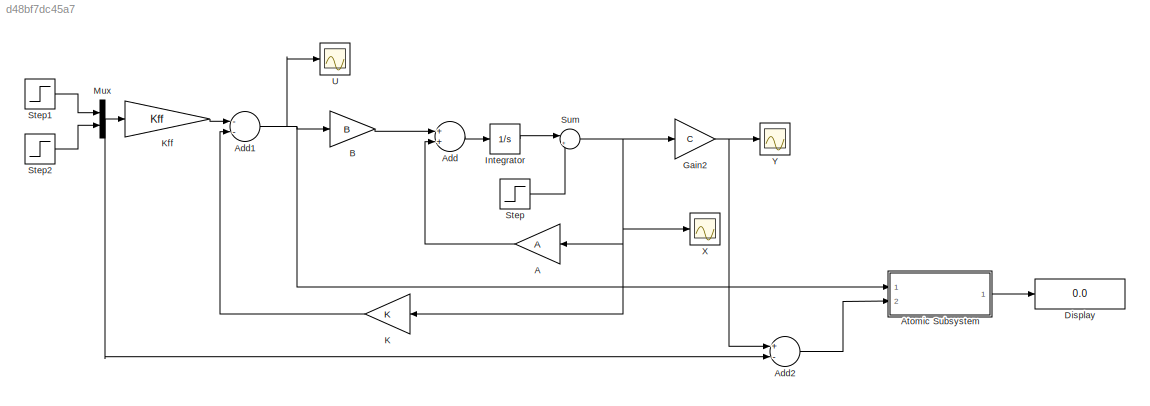
MODEL slx_d48bf7dc45a7
KIND model
CONFIG AbsTol = auto
CONFIG FixedStep = auto
CONFIG MaxStep = auto
CONFIG MinStep = auto
CONFIG RelTol = 1e-3
CONFIG SampleTimeConstraint = Unconstrained
CONFIG Solver = ode15s
CONFIG SolverMode = Auto
CONFIG SolverName = ode15s
CONFIG StartTime = 0.0
CONFIG StopTime = 10
BLOCK [Gain] A
  Gain = A
  Multiplication = Matrix(K*u)
  OutDataTypeStr = Inherit: Inherit via internal rule
  ParamDataTypeStr = Inherit: Inherit via internal rule
  SaturateOnIntegerOverflow = off
BLOCK [Sum] Add
  InputSameDT = off
  OutDataTypeStr = Inherit: Inherit via internal rule
  Ports = [2, 1]
  SaturateOnIntegerOverflow = off
BLOCK [Sum] Add1
  InputSameDT = off
  Inputs = --
  OutDataTypeStr = Inherit: Inherit via internal rule
  Ports = [2, 1]
  SaturateOnIntegerOverflow = off
BLOCK [Sum] Add2
  InputSameDT = off
  Inputs = +-
  OutDataTypeStr = Inherit: Inherit via internal rule
  Ports = [2, 1]
  SaturateOnIntegerOverflow = off
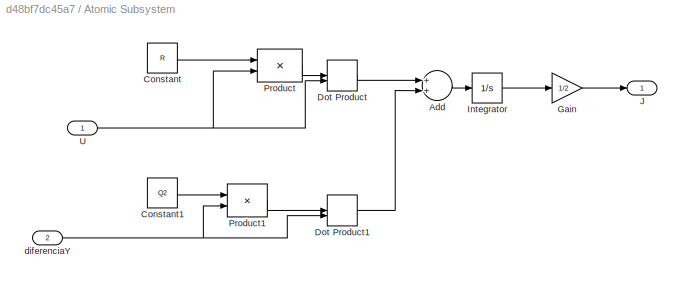
BLOCK [SubSystem] Atomic Subsystem
  Ports = [2, 1]
  RequestExecContextInheritance = off
  TreatAsAtomicUnit = on
BLOCK [Sum] Atomic Subsystem/Add
  InputSameDT = off
  OutDataTypeStr = Inherit: Inherit via internal rule
  Ports = [2, 1]
  SaturateOnIntegerOverflow = off
BLOCK [Constant] Atomic Subsystem/Constant
  Value = R
BLOCK [Constant] Atomic Subsystem/Constant1
  Value = Q2
BLOCK [DotProduct] Atomic Subsystem/Dot Product
  OutDataTypeStr = Inherit: Inherit via internal rule
BLOCK [DotProduct] Atomic Subsystem/Dot Product1
  OutDataTypeStr = Inherit: Inherit via internal rule
BLOCK [Gain] Atomic Subsystem/Gain
  Gain = 1/2
  OutDataTypeStr = Inherit: Inherit via internal rule
  ParamDataTypeStr = Inherit: Inherit via internal rule
  SaturateOnIntegerOverflow = off
BLOCK [Integrator] Atomic Subsystem/Integrator
  Ports = [1, 1]
BLOCK [Outport] Atomic Subsystem/J
  IconDisplay = Port number
BLOCK [Product] Atomic Subsystem/Product
  InputSameDT = off
  Multiplication = Matrix(*)
  OutDataTypeStr = Inherit: Inherit via internal rule
  Ports = [2, 1]
  RndMeth = Floor
  SaturateOnIntegerOverflow = off
BLOCK [Product] Atomic Subsystem/Product1
  InputSameDT = off
  Multiplication = Matrix(*)
  OutDataTypeStr = Inherit: Inherit via internal rule
  Ports = [2, 1]
  RndMeth = Floor
  SaturateOnIntegerOverflow = off
BLOCK [Inport] Atomic Subsystem/U
  IconDisplay = Port number
BLOCK [Inport] Atomic Subsystem/diferenciaY
  IconDisplay = Port number
  Port = 2
BLOCK [Gain] B
  Gain = B
  Multiplication = Matrix(K*u)
  OutDataTypeStr = Inherit: Inherit via internal rule
  ParamDataTypeStr = Inherit: Inherit via internal rule
  SaturateOnIntegerOverflow = off
BLOCK [Display] Display
  Decimation = 1
  Ports = [1]
BLOCK [Gain] Gain2
  Gain = C
  Multiplication = Matrix(K*u)
  OutDataTypeStr = Inherit: Inherit via internal rule
  ParamDataTypeStr = Inherit: Inherit via internal rule
  SaturateOnIntegerOverflow = off
BLOCK [Integrator] Integrator
  Ports = [1, 1]
BLOCK [Gain] K
  Gain = K
  Multiplication = Matrix(K*u)
  OutDataTypeStr = Inherit: Inherit via internal rule
  ParamDataTypeStr = Inherit: Inherit via internal rule
  SaturateOnIntegerOverflow = off
BLOCK [Gain] Kff
  Gain = Kff
  Multiplication = Matrix(K*u)
  OutDataTypeStr = Inherit: Inherit via internal rule
  ParamDataTypeStr = Inherit: Inherit via internal rule
  SaturateOnIntegerOverflow = off
BLOCK [Mux] Mux
  DisplayOption = bar
  Inputs = 2
  Ports = [2, 1]
BLOCK [Step] Step
  SampleTime = 0
  Time = 20
BLOCK [Step] Step1
  SampleTime = 0
  Time = 0
BLOCK [Step] Step2
  After = 0
  SampleTime = 0
  Time = 0
BLOCK [Sum] Sum
  IconShape = round
  InputSameDT = off
  Inputs = |++
  OutDataTypeStr = Inherit: Inherit via internal rule
  Ports = [2, 1]
  SaturateOnIntegerOverflow = off
BLOCK [Scope] U
  Floating = off
  LimitDataPoints = off
  NumInputPorts = 1
  Ports = [1]
  SaveName = U
  SaveToWorkspace = on
  ShowLegends = off
  TimeRange = 100
  YMax = 0.5
  YMin = -2
BLOCK [Scope] X
  Floating = off
  LimitDataPoints = off
  NumInputPorts = 1
  Ports = [1]
  SaveName = X
  SaveToWorkspace = on
  ShowLegends = off
BLOCK [Scope] Y
  Floating = off
  LimitDataPoints = off
  NumInputPorts = 1
  Ports = [1]
  SaveName = Y
  SaveToWorkspace = on
  ShowLegends = off
  TimeRange = 50
  YMax = 0.7000000000000001
  YMin = -0.1
LINE A:1 -> Add:2
NET Add1:1 -> Atomic Subsystem:1, B:1, U:1
LINE Add2:1 -> Atomic Subsystem:2
LINE Add:1 -> Integrator:1
LINE Atomic Subsystem/Add:1 -> Atomic Subsystem/Integrator:1
LINE Atomic Subsystem/Constant1:1 -> Atomic Subsystem/Product1:1
LINE Atomic Subsystem/Constant:1 -> Atomic Subsystem/Product:1
LINE Atomic Subsystem/Dot Product1:1 -> Atomic Subsystem/Add:2
LINE Atomic Subsystem/Dot Product:1 -> Atomic Subsystem/Add:1
LINE Atomic Subsystem/Gain:1 -> Atomic Subsystem/J:1
LINE Atomic Subsystem/Integrator:1 -> Atomic Subsystem/Gain:1
LINE Atomic Subsystem/Product1:1 -> Atomic Subsystem/Dot Product1:1
LINE Atomic Subsystem/Product:1 -> Atomic Subsystem/Dot Product:1
NET Atomic Subsystem/U:1 -> Atomic Subsystem/Dot Product:2, Atomic Subsystem/Product:2
NET Atomic Subsystem/diferenciaY:1 -> Atomic Subsystem/Dot Product1:2, Atomic Subsystem/Product1:2
LINE Atomic Subsystem:1 -> Display:1
LINE B:1 -> Add:1
NET Gain2:1 -> Add2:1, Y:1
LINE Integrator:1 -> Sum:1
LINE K:1 -> Add1:2
LINE Kff:1 -> Add1:1
NET Mux:1 -> Add2:2, Kff:1
LINE Step1:1 -> Mux:1
LINE Step2:1 -> Mux:2
LINE Step:1 -> Sum:2
NET Sum:1 -> A:1, Gain2:1, K:1, X:1
note: NET lines group one-source signal fan-out (src -> all destinations, sorted); 1:1 wires keep LINE
